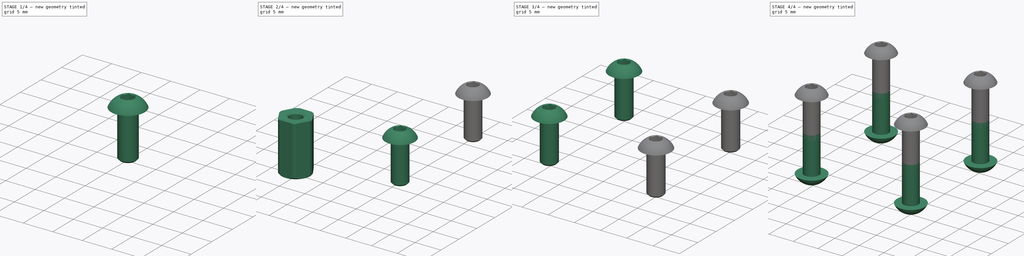
[diagram: build sequence overview — one tinted view per stage of 4, left to right]
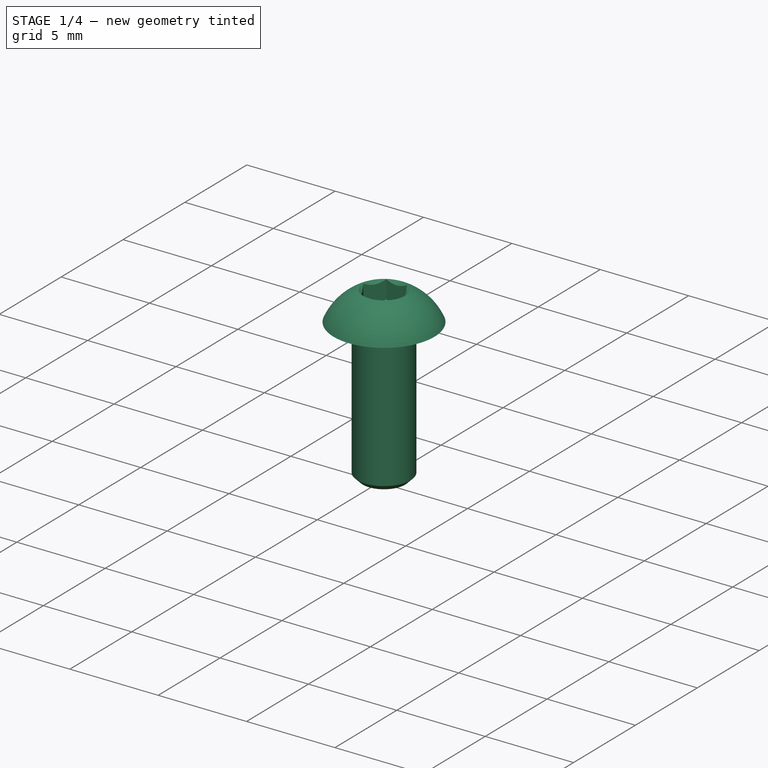
[diagram: stage 1 of 4 — iso view after this stage's code; geometry added in this stage tinted green]
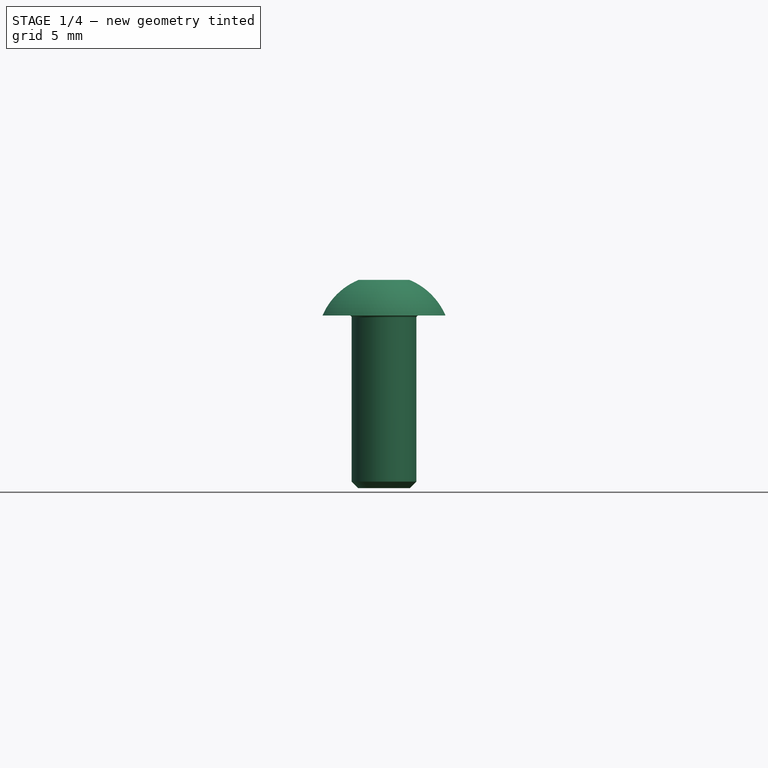
[diagram: stage 1 of 4 — front view after this stage's code; geometry added in this stage tinted green]
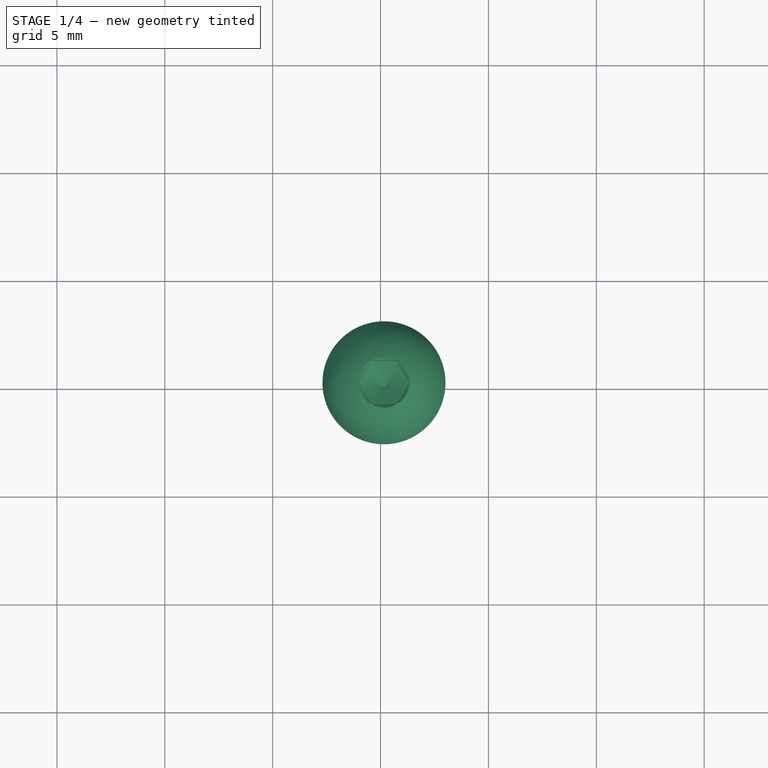
[diagram: stage 1 of 4 — top view after this stage's code; geometry added in this stage tinted green]
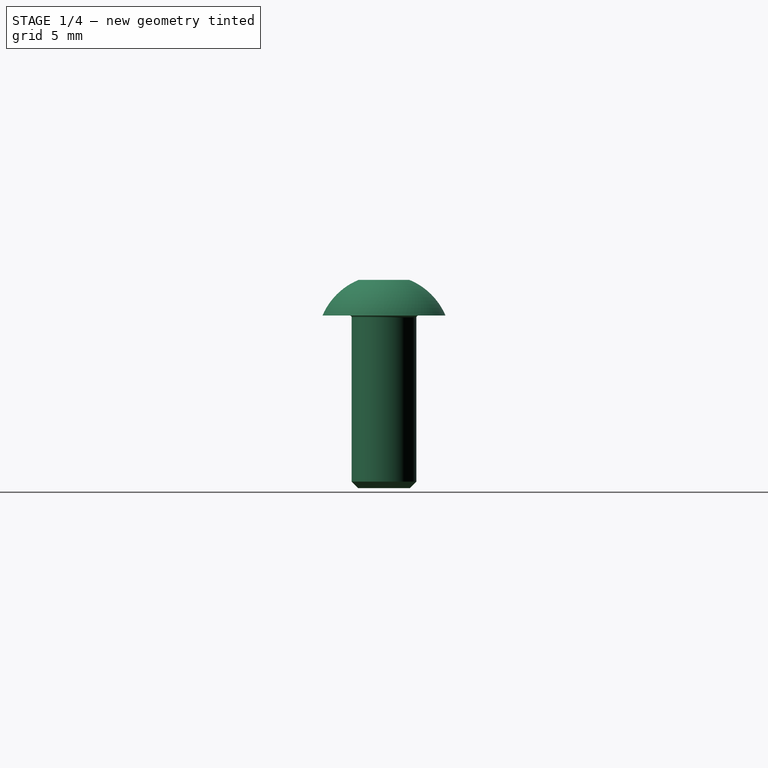
[diagram: stage 1 of 4 — right view after this stage's code; geometry added in this stage tinted green]
FCSTD DOCUMENT  (FreeCAD 2024.113R14555 (Git shallow))
Label: otos-sensor
License: All rights reserved
LicenseURL: http://en.wikipedia.org/wiki/All_rights_reserved
objects: Part::FeaturePython×12, Sketcher::SketchObject×1, PartDesign::ShapeBinder×1, PartDesign::Pad×1, PartDesign::Fillet×1, PartDesign::Body×1, TechDraw::DrawSVGTemplate×1, TechDraw::DrawProjGroupItem×1, TechDraw::DrawPage×1, App::DocumentObjectGroup×1, App::Link×1, App::Part×1
note: 22 computed .brp shape members not serialized (recipe doc carries the construction recipe); baked Part::Feature solids carry a one-line shape summary decoded from their .brp
EXTERNAL_REF file=../mechanical-parts/generic-hardware.FCStd obj=Part045

FEATURE [Sketcher::SketchObject] Sketch
  ArcFitTolerance = 0
  ExternalBSplineMaxDegree = 0
  ExternalBSplineTolerance = 0
  FixShape = 1
  FullyConstrained = true
  InternalTolerance = 1e-06
  InvalidShape = false
  MakeInternals = false
  MapMode = 5
  TreeRank = 0
  ValidateShape = false
  sketch-geometry (23):
    g0: LineSegment StartX=34.641 StartY=0 StartZ=0 EndX=17.3205 EndY=30 EndZ=0
    g1: LineSegment StartX=17.3205 StartY=30 StartZ=0 EndX=-17.3205 EndY=30 EndZ=0
    g2: LineSegment StartX=-17.3205 StartY=30 StartZ=0 EndX=-34.641 EndY=3.6e-15 EndZ=0
    g3: LineSegment StartX=-34.641 StartY=2.8e-15 StartZ=0 EndX=-17.3205 EndY=-30 EndZ=0
    g4: LineSegment StartX=-17.3205 StartY=-30 StartZ=0 EndX=17.3205 EndY=-30 EndZ=0
    g5: LineSegment StartX=17.3205 StartY=-30 StartZ=0 EndX=34.641 EndY=0 EndZ=0
    g6: Circle [constr] CenterX=0 CenterY=0 CenterZ=0 NormalX=0 NormalY=0 NormalZ=1 AngleXU=0 Radius=34.641
    g7: Circle CenterX=-21.6506 CenterY=12.5 CenterZ=0 NormalX=0 NormalY=0 NormalZ=1 AngleXU=0 Radius=1.6
    g8: Circle CenterX=0 CenterY=-25 CenterZ=0 NormalX=0 NormalY=0 NormalZ=1 AngleXU=0 Radius=1.6
    g9: LineSegment [constr] StartX=-10.16 StartY=-10.16 StartZ=0 EndX=10.16 EndY=-10.16 EndZ=0
    g10: LineSegment [constr] StartX=10.16 StartY=-10.16 StartZ=0 EndX=10.16 EndY=10.16 EndZ=0
    g11: LineSegment [constr] StartX=10.16 StartY=10.16 StartZ=0 EndX=-10.16 EndY=10.16 EndZ=0
    g12: LineSegment [constr] StartX=-10.16 StartY=10.16 StartZ=0 EndX=-10.16 EndY=-10.16 EndZ=0
    g13: GeomPoint [constr] X=0 Y=0 Z=0
    g14: Circle CenterX=-10.16 CenterY=10.16 CenterZ=0 NormalX=0 NormalY=0 NormalZ=1 AngleXU=0 Radius=1.6
    g15: Circle CenterX=10.16 CenterY=10.16 CenterZ=0 NormalX=0 NormalY=0 NormalZ=1 AngleXU=0 Radius=1.6
    g16: Circle CenterX=10.16 CenterY=-10.16 CenterZ=0 NormalX=0 NormalY=0 NormalZ=1 AngleXU=0 Radius=1.6
    g17: Circle CenterX=-10.16 CenterY=-10.16 CenterZ=0 NormalX=0 NormalY=0 NormalZ=1 AngleXU=0 Radius=1.6
    g18: Circle CenterX=0 CenterY=0 CenterZ=0 NormalX=0 NormalY=0 NormalZ=1 AngleXU=0 Radius=10
    g19: Circle CenterX=21.6506 CenterY=12.5 CenterZ=0 NormalX=0 NormalY=0 NormalZ=1 AngleXU=0 Radius=1.6
    g20: LineSegment [constr] StartX=0 StartY=0 StartZ=0 EndX=21.6506 EndY=12.5 EndZ=0
    g21: LineSegment [constr] StartX=0 StartY=0 StartZ=0 EndX=-21.6506 EndY=12.5 EndZ=0
    g22: LineSegment [constr] StartX=0 StartY=-25 StartZ=0 EndX=0 EndY=0 EndZ=0
  constraints (53):
    c: Coincident(g0,g1)
    c: Coincident(g1,g2)
    c: Coincident(g2,g3)
    c: Coincident(g3,g4)
    c: Coincident(g4,g5)
    c: Coincident(g5,g0)
    c: Equal(g0, g1-g5) x5
    c: PointOnObject(g0,g6)
    c: PointOnObject(g1,g6)
    c: PointOnObject(g2,g6)
    c: PointOnObject(g3,g6)
    c: PointOnObject(g4,g6)
    c: PointOnObject(g5,g6)
    c: Coincident(g6,g-1)
    c: PointOnObject(g5,g-1)
    c: DistanceY(g4,g0) = 60
    c: Equal(g8,g7)
    c: Coincident(g9,g10)
    c: Coincident(g10,g11)
    c: Coincident(g11,g12)
    c: Coincident(g12,g9)
    c: Horizontal(g9)
    c: Horizontal(g11)
    c: Vertical(g10)
    c: Vertical(g12)
    c: Symmetric(g11,g9,g13)
    c: Coincident(g13,g6)
    c: Equal(g10,g11)
    c: DistanceY(g10,g10) = 20.32
    c: Coincident(g14,g11)
    c: Coincident(g15,g10)
    c: Coincident(g16,g9)
    c: Coincident(g17,g9)
    c: Equal(g17,g16)
    c: Equal(g16,g15)
    c: Equal(g15,g14)
    c: Diameter(g15) = 3.2
    c: Coincident(g18,g6)
    c: Diameter(g18) = 20
    c: Diameter(g8) = 3.2
    c: Equal(g19,g8)
    c: Coincident(g20,g6)
    c: Coincident(g20,g19)
    c: Coincident(g21,g6)
    c: Coincident(g21,g7)
    c: Angle(g-2,g20) = 2.0944
    c: Equal(g20,g21)
    c: DistanceY(g8,g18) = 25
    c: Coincident(g22,g8)
    c: Coincident(g22,g18)
    c: Vertical(g22)
    c: Equal(g22,g20)
    c: Angle(g21,g22) = 2.0944
FEATURE [PartDesign::ShapeBinder] ShapeBinder
  FixShape = 1
  InvalidShape = false
  TraceSupport = false
  TreeRank = 0
  ValidateShape = false
FEATURE [PartDesign::Pad] Pad
  AddSubType = 0
  AutoTaperInnerAngle = true
  CheckUpToFaceLimits = true
  ClaimChildren = false
  Direction = (0,0,1)
  Fit = 0
  FitJoin = 0
  FixShape = 1
  InnerFit = 0
  InnerFitJoin = 0
  InvalidShape = false
  Length = 3
  Length2 = 10
  NewSolid = false
  Profile = -> Sketch
  ReferenceAxis = -> Sketch [N_Axis]
  Refine = true
  Suppress = false
  TaperInnerAngle = 0
  TaperInnerAngleRev = 0
  TreeRank = 0
  Type = 0
  ValidateShape = true
  _ProfileBasedVersion = 0
FEATURE [PartDesign::Fillet] Fillet
  AddSubType = 0
  Base = -> Pad [Edge1,Edge14,Edge2,Edge11,Edge8,Edge5]
  BaseFeature = -> Pad
  FixShape = 1
  InvalidShape = false
  NewSolid = false
  Radius = 10
  Refine = true
  SupportTransform = false
  Suppress = false
  TreeRank = 0
  UseAllEdges = false
  ValidateShape = true
FEATURE [Part::FeaturePython] Spacer003  label="M3x10xx5.5-Entretoise009"  # Fasteners workbench fastener (typed FeaturePython)
  FixShape = 1
  InvalidShape = false
  Placement = pos=(10.16,10.16,-5) rot=(0,0,1;0rad)
  TreeRank = 0
  ValidateShape = false
  baseObject = -> Body [Edge43]
  diameter = 2
  invert = false
  leftHanded = false
  length = 5
  lengthCustom = 10
  matchOuter = false
  offset = 0
  thread = false
  type = 0
  width = 1
FEATURE [Part::FeaturePython] Screw007  label="M3x8-Vis025"  # Fasteners workbench fastener (typed FeaturePython)
  FixShape = 1
  InvalidShape = false
  Placement = pos=(10.16,10.16,6.5) rot=(0,0,1;0rad)
  TreeRank = 0
  ValidateShape = false
  baseObject = -> Spacer003 [Edge2]
  diameter = 1
  invert = false
  leftHanded = false
  length = 1
  lengthCustom = 8
  matchOuter = false
  offset = 1.6
  thread = false
  type = 58
FEATURE [TechDraw::DrawSVGTemplate] Template  label="Modèle"
  Height = 210
  Orientation = 1
  Template = C:/Program Files/Ondsel ES 2024.2/Ondsel ES 2024.2/data/Mod/TechDraw/Templates/A4_Landscape_blank.svg
  TreeRank = 0
  Width = 297
FEATURE [TechDraw::DrawProjGroupItem] View
  CoarseView = false
  Direction = (0,0,-1)
  Focus = 100
  HardHidden = false
  IsoCount = 0
  IsoHidden = false
  IsoVisible = false
  LockPosition = false
  Perspective = false
  Rotation = 0
  RotationVector = (1,0,0)
  ScaleType = 0
  ScrubCount = 0
  SeamHidden = false
  SeamVisible = false
  SmoothHidden = false
  SmoothVisible = true
  Source = -> [Fillet]
  TreeRank = 0
  Type = 0
  X = 35.0413
  XDirection = (1,0,0)
  Y = 177.668
FEATURE [TechDraw::DrawPage] Page  label="Laser3mm_OtosSupport"
  KeepUpdated = true
  NextBalloonIndex = 1
  ProjectionType = 0
  Template = -> Template
  TreeRank = 0
  Views = -> [View]
FEATURE [App::DocumentObjectGroup] Group004  label="Laser"
  ClaimAllChildren = true
  ExportMode = 1
  Group = -> [Page]
  TreeRank = 0
  _GroupVersion = 1
FEATURE [App::Link] Link  label="SparkFun OTOS - SEN-24904"
  AutoLinkLabel = false
  AutoPlacement = true
  LinkPlacement = pos=(0,-5.96046e-07,5) rot=(0,0,1;0rad)
  LinkedObject = -> <external ../mechanical-parts/generic-hardware.FCStd>#Part045
  Placement = pos=(0,-5.96046e-07,5) rot=(0,0,1;0rad)
  SyncGroupVisibility = false
  TreeRank = 0
  _LinkVersion = 1
FEATURE [App::Part] Part006  label="Otos_Assembly"
  ClaimAllChildren = false
  ExportMode = 1
  Group = -> [Spacer,Spacer001,Spacer002,Spacer003,Screw,Screw001,Screw002,Screw003,Screw004,Screw005,Screw006,Screw007,Body,Link]
  Origin = -> Origin036
  TreeRank = 0
  _ExportChildren = -> [Spacer,Spacer001,Spacer002,Spacer003,Screw,Screw001,Screw002,Screw003,Screw004,Screw005,Screw006,Screw007,Body,Link]
  _GroupVersion = 1

RESOLVED EXTERNAL PARTS (link-assembly join: the EXTERNAL_REF files above that resolve inside this repo's crawl, each included once):
---- part ../mechanical-parts/generic-hardware.FCStd = doc fcstd_c3dd29bfd943 (311813 chars; too large to inline — full recipe in that document) ----
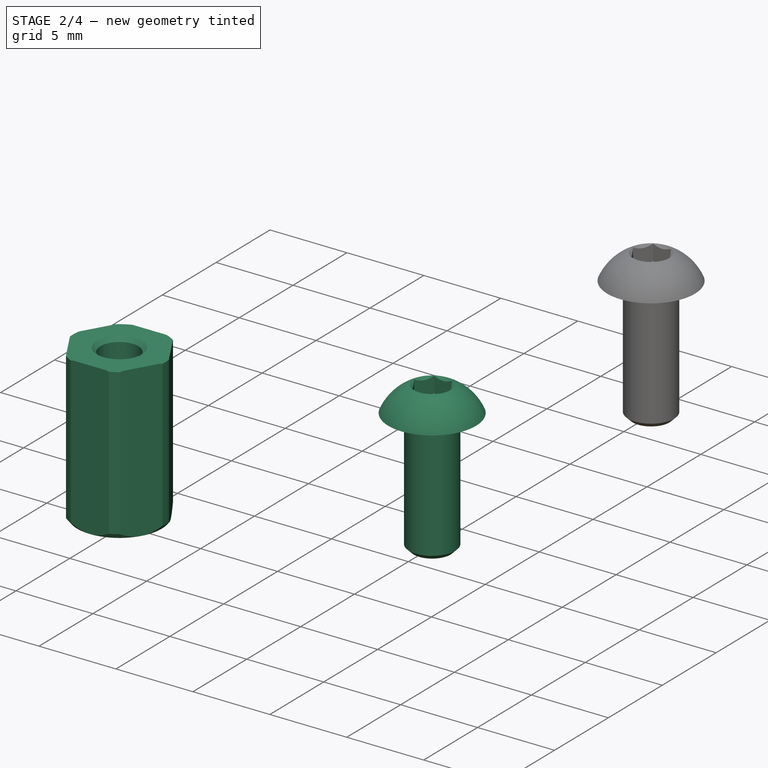
[diagram: stage 2 of 4 — iso view after this stage's code; geometry added in this stage tinted green]
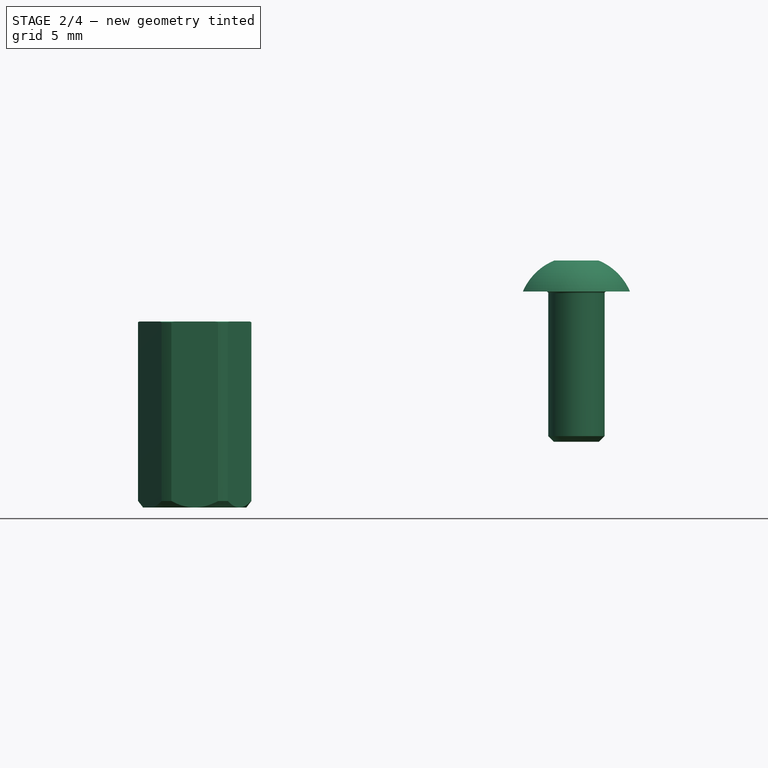
[diagram: stage 2 of 4 — front view after this stage's code; geometry added in this stage tinted green]
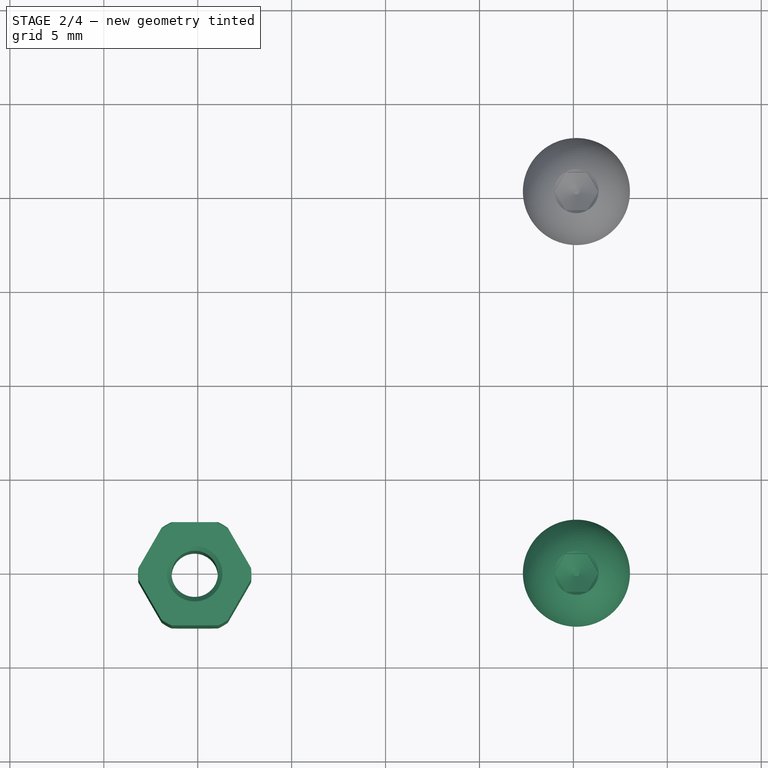
[diagram: stage 2 of 4 — top view after this stage's code; geometry added in this stage tinted green]
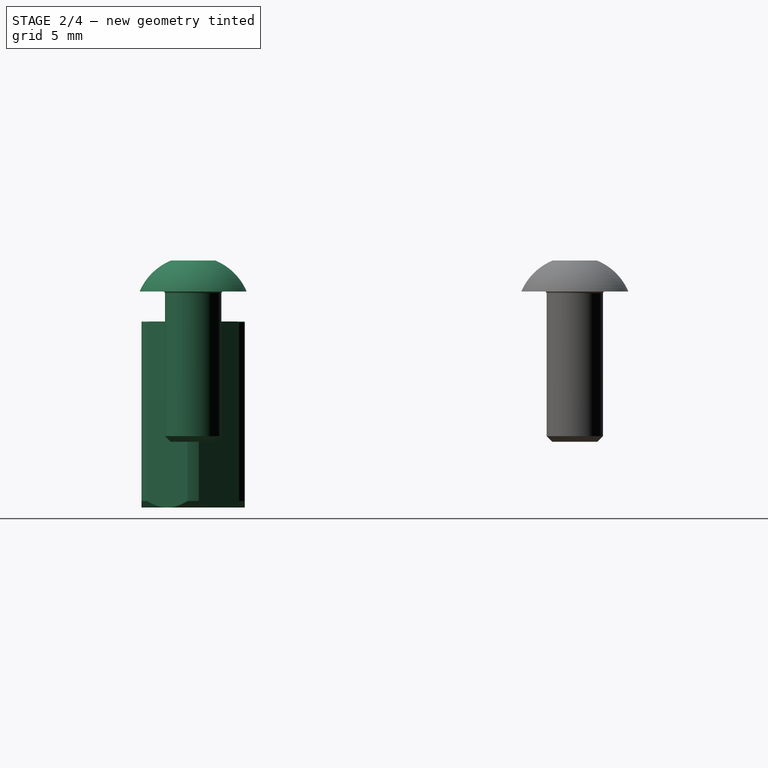
[diagram: stage 2 of 4 — right view after this stage's code; geometry added in this stage tinted green]
FEATURE [Part::FeaturePython] Spacer001  label="M3x10xx5.5-Entretoise007"  # Fasteners workbench fastener (typed FeaturePython)
  FixShape = 1
  InvalidShape = false
  Placement = pos=(-10.16,-10.16,-5) rot=(0,0,1;0rad)
  TreeRank = 0
  ValidateShape = false
  baseObject = -> Body [Edge41]
  diameter = 2
  invert = false
  leftHanded = false
  length = 5
  lengthCustom = 10
  matchOuter = false
  offset = 0
  thread = false
  type = 0
  width = 1
FEATURE [Part::FeaturePython] Spacer002  label="M3x10xx5.5-Entretoise008"  # Fasteners workbench fastener (typed FeaturePython)
  FixShape = 1
  InvalidShape = false
  Placement = pos=(10.16,-10.16,-5) rot=(0,0,1;0rad)
  TreeRank = 0
  ValidateShape = false
  baseObject = -> Body [Edge42]
  diameter = 2
  invert = false
  leftHanded = false
  length = 5
  lengthCustom = 10
  matchOuter = false
  offset = 0
  thread = false
  type = 0
  width = 1
FEATURE [Part::FeaturePython] Screw006  label="M3x8-Vis024"  # Fasteners workbench fastener (typed FeaturePython)
  FixShape = 1
  InvalidShape = false
  Placement = pos=(10.16,-10.16,6.5) rot=(0,0,1;0rad)
  TreeRank = 0
  ValidateShape = false
  baseObject = -> Spacer002 [Edge2]
  diameter = 1
  invert = false
  leftHanded = false
  length = 1
  lengthCustom = 8
  matchOuter = false
  offset = 1.6
  thread = false
  type = 58
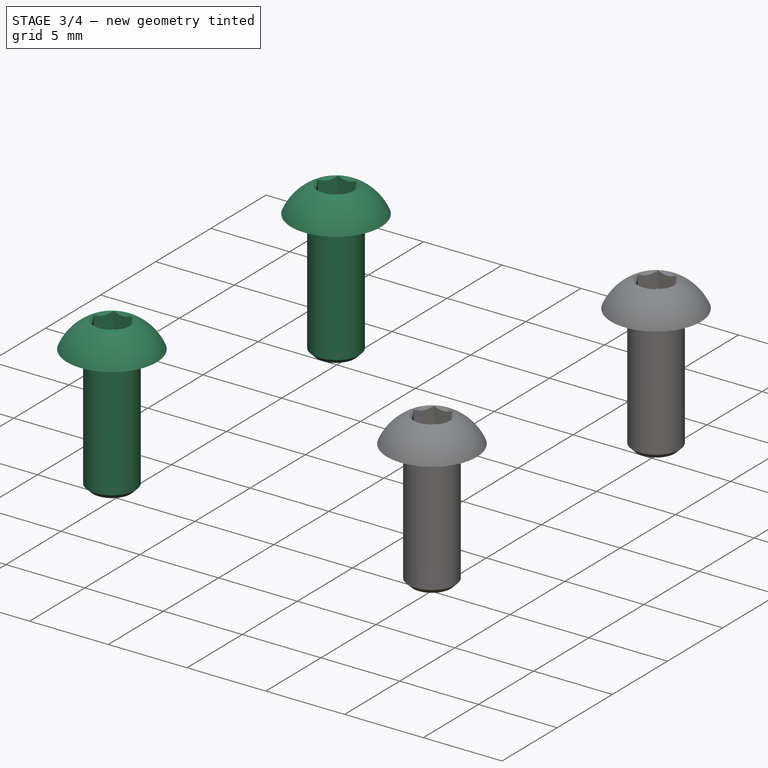
[diagram: stage 3 of 4 — iso view after this stage's code; geometry added in this stage tinted green]
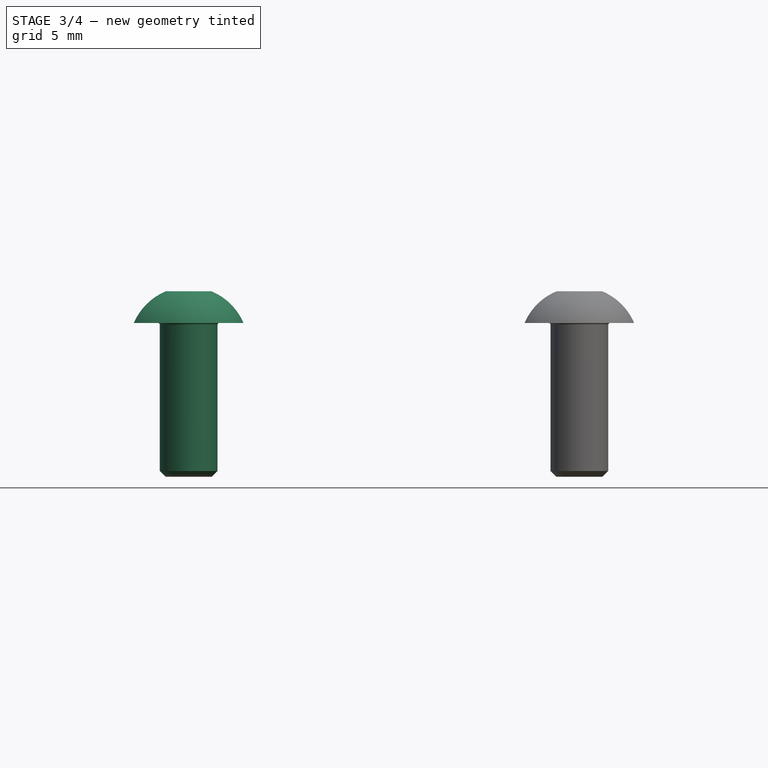
[diagram: stage 3 of 4 — front view after this stage's code; geometry added in this stage tinted green]
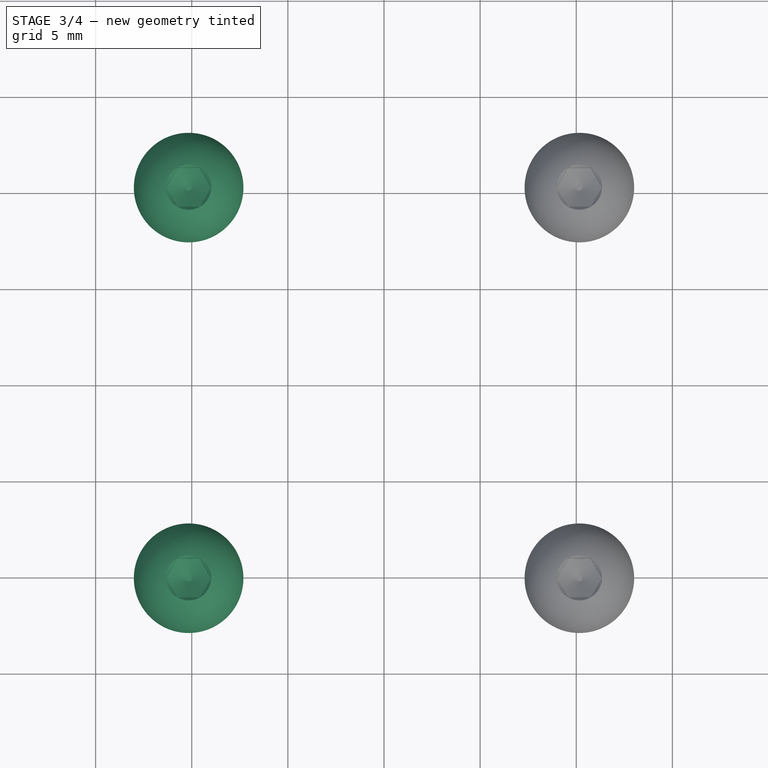
[diagram: stage 3 of 4 — top view after this stage's code; geometry added in this stage tinted green]
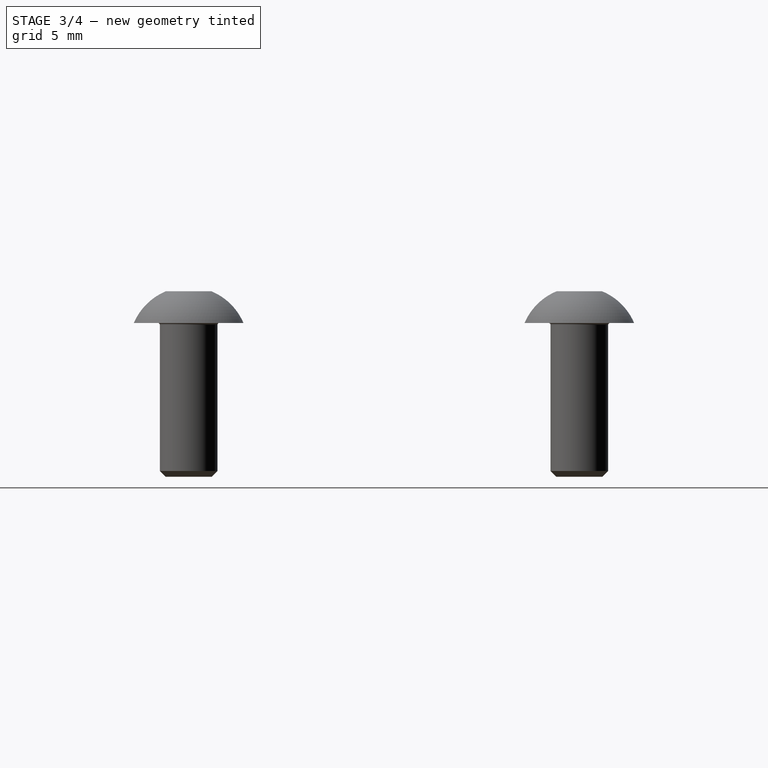
[diagram: stage 3 of 4 — right view after this stage's code; geometry added in this stage tinted green]
FEATURE [PartDesign::Body] Body  label="Corps"
  AutoGroupSolids = false
  ClaimAllChildren = false
  ExportMode = 0
  FixShape = 1
  Group = -> [Sketch,ShapeBinder,Pad,Fillet]
  InvalidShape = false
  Origin = -> Origin034
  Placement = pos=(0,0,-8) rot=(0,0,1;0rad)
  SingleSolid = true
  Tip = -> Fillet
  TreeRank = 0
  ValidateShape = false
  _ExportChildren = -> [ShapeBinder,Pad,Fillet]
  _GroupVersion = 1
FEATURE [Part::FeaturePython] Spacer  label="M3x10xx5.5-Entretoise"  # Fasteners workbench fastener (typed FeaturePython)
  FixShape = 1
  InvalidShape = false
  Placement = pos=(-10.16,10.16,-5) rot=(0,0,1;0rad)
  TreeRank = 0
  ValidateShape = false
  baseObject = -> Body [Edge44]
  diameter = 2
  invert = false
  leftHanded = false
  length = 5
  lengthCustom = 10
  matchOuter = false
  offset = 0
  thread = false
  type = 0
  width = 1
FEATURE [Part::FeaturePython] Screw004  label="M3x8-Vis022"  # Fasteners workbench fastener (typed FeaturePython)
  FixShape = 1
  InvalidShape = false
  Placement = pos=(-10.16,10.16,6.5) rot=(0,0,1;0rad)
  TreeRank = 0
  ValidateShape = false
  baseObject = -> Spacer [Edge2]
  diameter = 1
  invert = false
  leftHanded = false
  length = 1
  lengthCustom = 8
  matchOuter = false
  offset = 1.6
  thread = false
  type = 58
FEATURE [Part::FeaturePython] Screw005  label="M3x8-Vis023"  # Fasteners workbench fastener (typed FeaturePython)
  FixShape = 1
  InvalidShape = false
  Placement = pos=(-10.16,-10.16,6.5) rot=(0,0,1;0rad)
  TreeRank = 0
  ValidateShape = false
  baseObject = -> Spacer001 [Edge2]
  diameter = 1
  invert = false
  leftHanded = false
  length = 1
  lengthCustom = 8
  matchOuter = false
  offset = 1.6
  thread = false
  type = 58
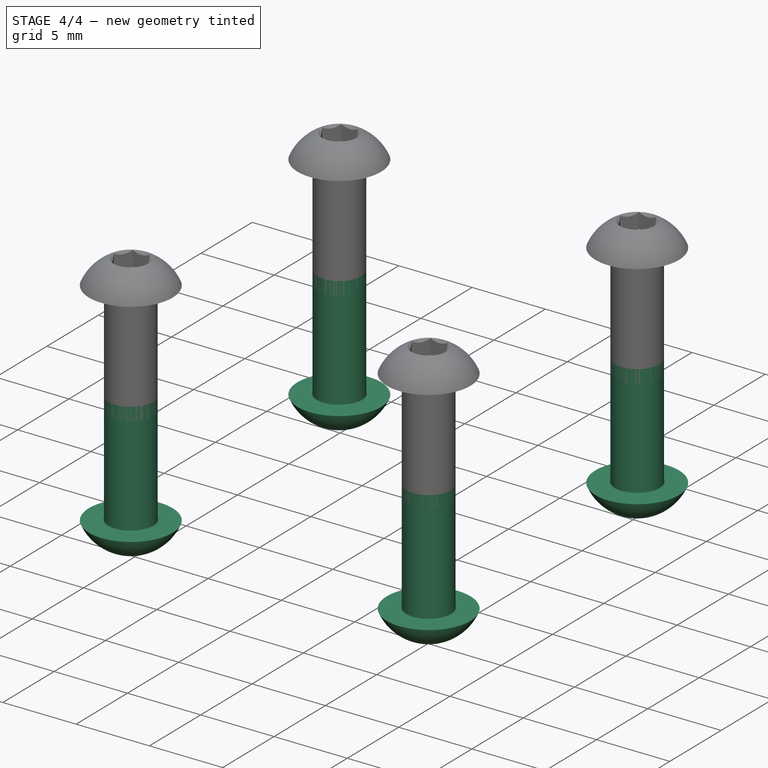
[diagram: stage 4 of 4 — iso view after this stage's code; geometry added in this stage tinted green]
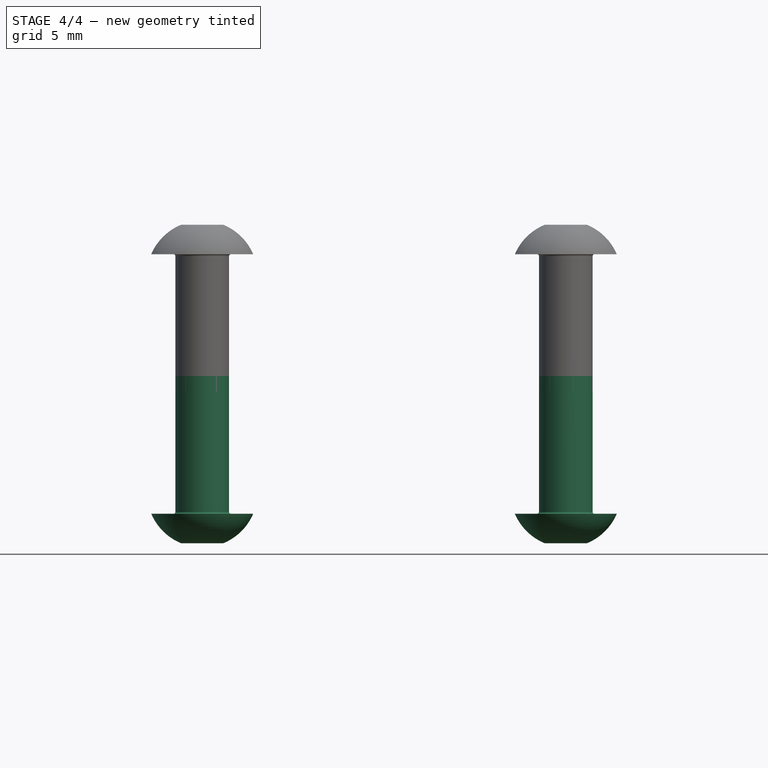
[diagram: stage 4 of 4 — front view after this stage's code; geometry added in this stage tinted green]
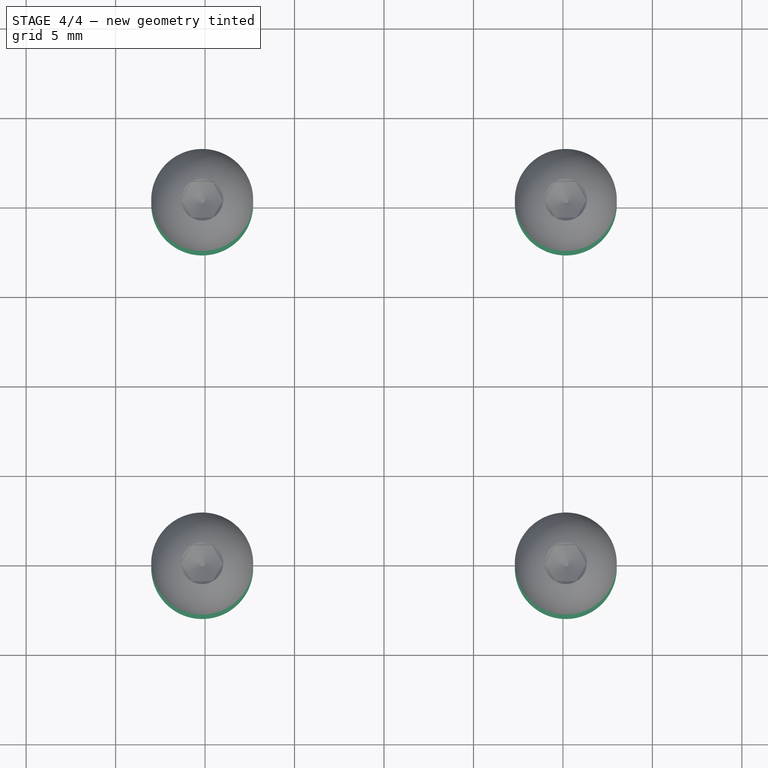
[diagram: stage 4 of 4 — top view after this stage's code; geometry added in this stage tinted green]
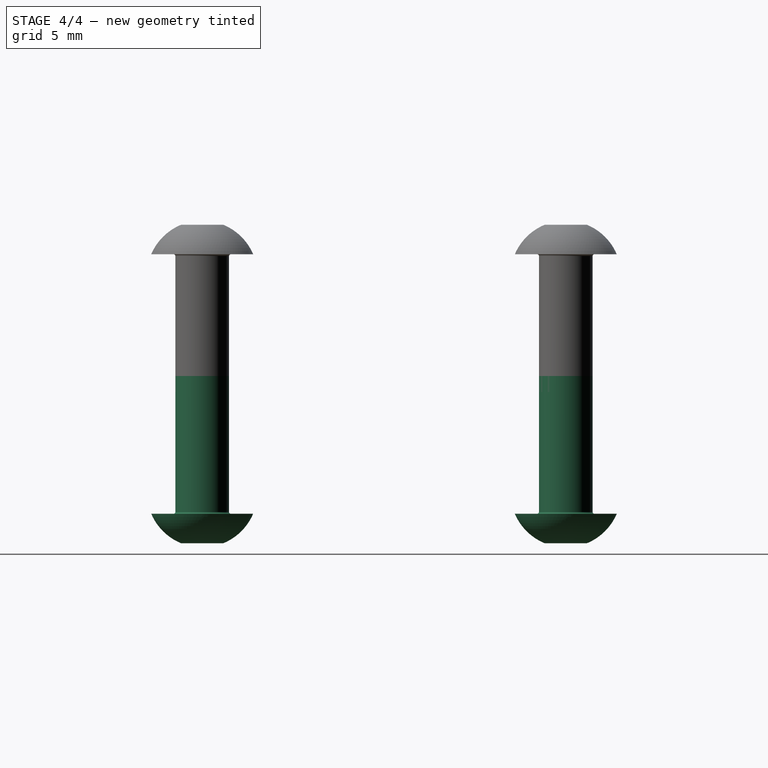
[diagram: stage 4 of 4 — right view after this stage's code; geometry added in this stage tinted green]
FEATURE [Part::FeaturePython] Screw  label="M3x8-Vis"  # Fasteners workbench fastener (typed FeaturePython)
  FixShape = 1
  InvalidShape = false
  Placement = pos=(-10.16,-10.16,-8) rot=(1,0,0;3.14159rad)
  TreeRank = 0
  ValidateShape = false
  baseObject = -> Body [Edge20]
  diameter = 1
  invert = true
  leftHanded = false
  length = 1
  lengthCustom = 8
  matchOuter = false
  offset = 0
  thread = false
  type = 58
FEATURE [Part::FeaturePython] Screw001  label="M3x8-Vis019"  # Fasteners workbench fastener (typed FeaturePython)
  FixShape = 1
  InvalidShape = false
  Placement = pos=(-10.16,10.16,-8) rot=(1,0,0;3.14159rad)
  TreeRank = 0
  ValidateShape = false
  baseObject = -> Body [Edge23]
  diameter = 1
  invert = true
  leftHanded = false
  length = 1
  lengthCustom = 8
  matchOuter = false
  offset = 0
  thread = false
  type = 58
FEATURE [Part::FeaturePython] Screw002  label="M3x8-Vis020"  # Fasteners workbench fastener (typed FeaturePython)
  FixShape = 1
  InvalidShape = false
  Placement = pos=(10.16,10.16,-8) rot=(1,0,0;3.14159rad)
  TreeRank = 0
  ValidateShape = false
  baseObject = -> Body [Edge22]
  diameter = 1
  invert = true
  leftHanded = false
  length = 1
  lengthCustom = 8
  matchOuter = false
  offset = 0
  thread = false
  type = 58
FEATURE [Part::FeaturePython] Screw003  label="M3x8-Vis021"  # Fasteners workbench fastener (typed FeaturePython)
  FixShape = 1
  InvalidShape = false
  Placement = pos=(10.16,-10.16,-8) rot=(1,0,0;3.14159rad)
  TreeRank = 0
  ValidateShape = false
  baseObject = -> Body [Edge21]
  diameter = 1
  invert = true
  leftHanded = false
  length = 1
  lengthCustom = 8
  matchOuter = false
  offset = 0
  thread = false
  type = 58
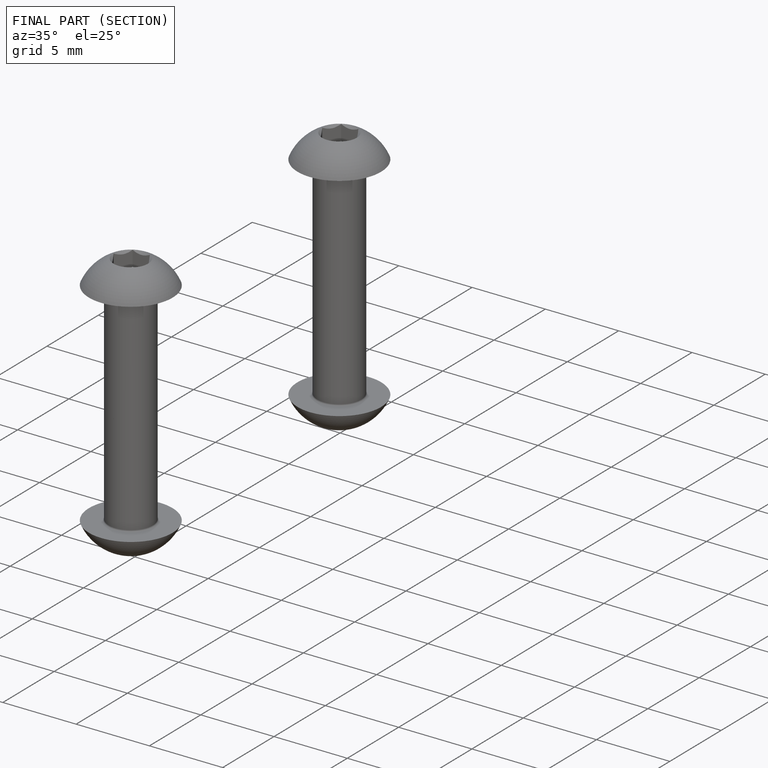
[diagram: finished part — half-section view (interior)]
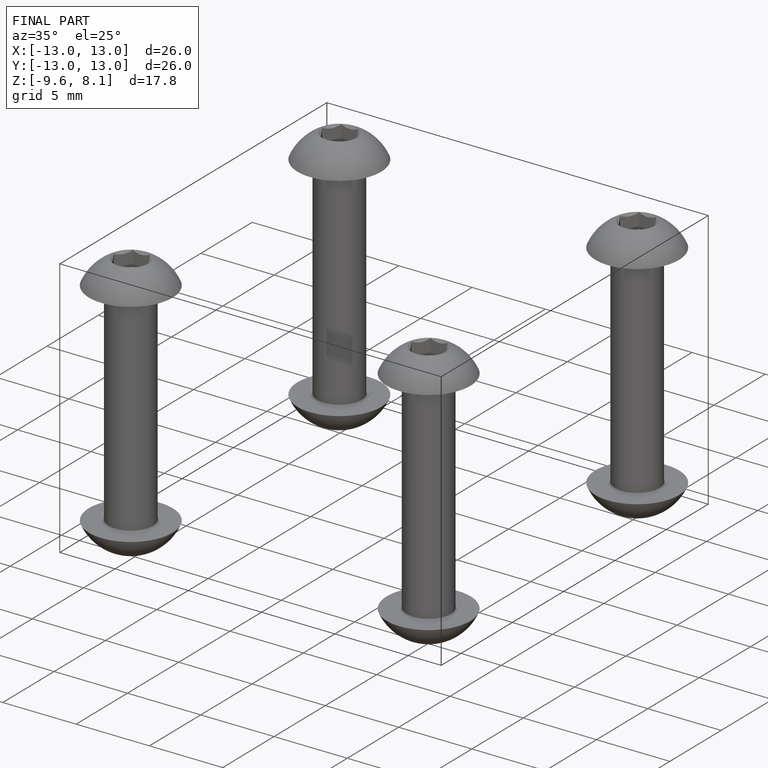
[diagram: finished part — iso view with bounding-box wireframe]
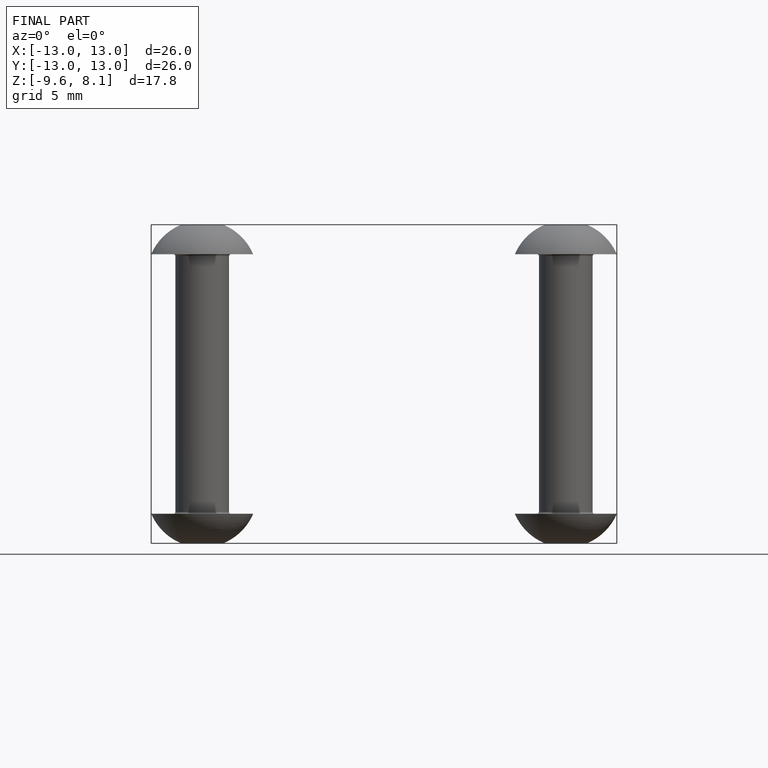
[diagram: finished part — front view with bounding-box wireframe]
